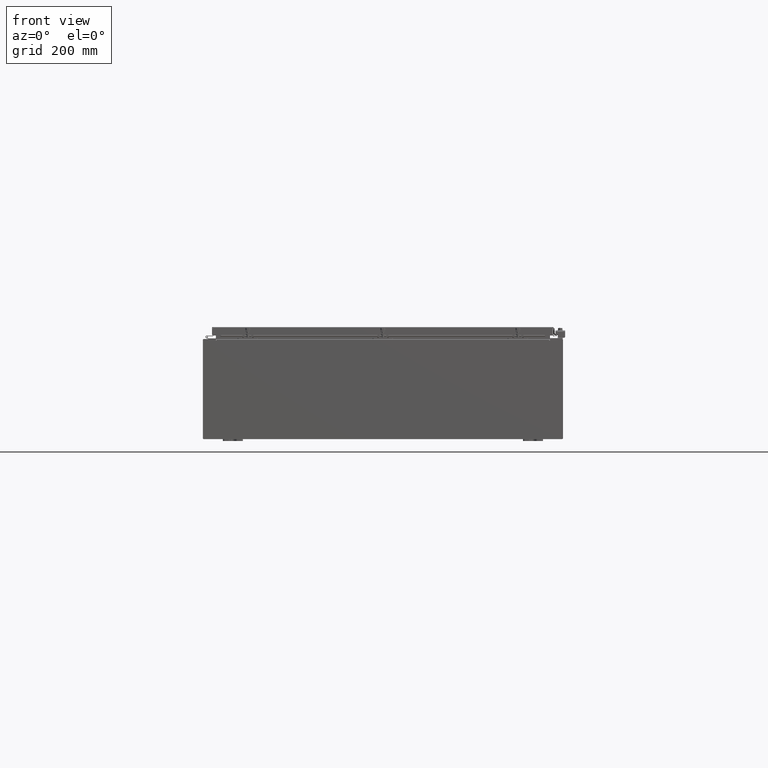
[diagram: clean part render]
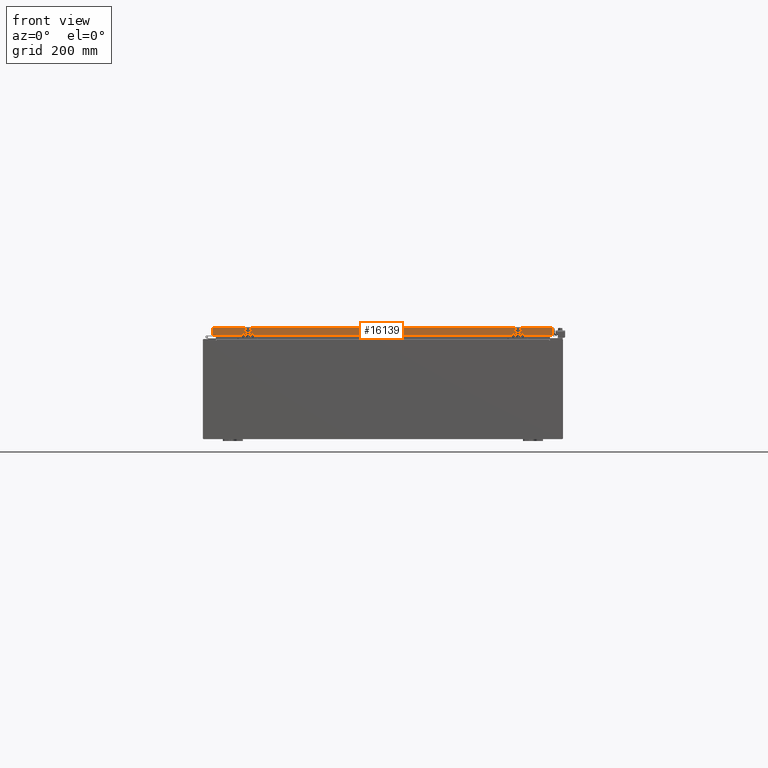
[diagram: same view with one face highlighted and labeled with its STEP entity id]
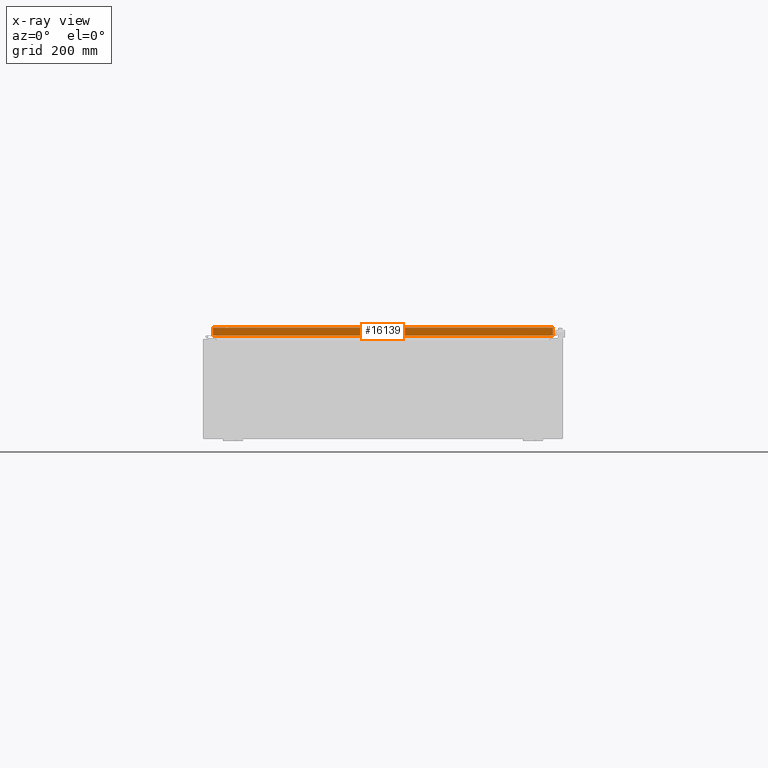
[diagram: x-ray of the same camera — body ghosted, the highlighted face saturated]
A machine part, front view. The second image highlights one B-rep face of the part: STEP entity #16139.
The next image is the same camera in x-ray: the body ghosted, the highlighted face saturated — about 0% of this face is hidden behind the body in this view.
In plain terms, the highlighted planar face has unit normal (-0, 1, -0).
Its self-contained STEP definition (entity closure, byte-faithful):
#249 = CARTESIAN_POINT ( 'NONE',  ( 16.98915786437627100, -29.09400000000000500, -0.8499999999999996400 ) ) ;
#1231 = VECTOR ( 'NONE', #41360, 39.37007874015748100 ) ;
#2970 = LINE ( 'NONE', #6198, #27816 ) ;
#3167 = VERTEX_POINT ( 'NONE', #3233 ) ;
#3233 = CARTESIAN_POINT ( 'NONE',  ( -16.98915786437626700, -29.09400000000000500, -0.8499999999999954300 ) ) ;
#6198 = CARTESIAN_POINT ( 'NONE',  ( 17.07800000000000300, -29.09400000000000500, -0.8499999999999996400 ) ) ;
#6711 = ORIENTED_EDGE ( 'NONE', *, *, #9176, .T. ) ;
#6802 = CARTESIAN_POINT ( 'NONE',  ( 16.23915786437626400, -29.09400000000000800, -0.8499999999999994200 ) ) ;
#9176 = EDGE_CURVE ( 'NONE', #16498, #3167, #40925, .T. ) ;
#9750 = VECTOR ( 'NONE', #27063, 39.37007874015748100 ) ;
#9817 = VERTEX_POINT ( 'NONE', #6802 ) ;
#11262 = DIRECTION ( 'NONE',  ( -1.000000000000000000, -0.0000000000000000000, 1.239713195391617100E-016 ) ) ;
#12167 = CARTESIAN_POINT ( 'NONE',  ( 17.07800000000000300, -29.09400000000000100, -0.08769999999999547600 ) ) ;
#13318 = ORIENTED_EDGE ( 'NONE', *, *, #60888, .F. ) ;
#13422 = CARTESIAN_POINT ( 'NONE',  ( 16.23915786437626400, -29.09400000000000800, -0.8499999999999994200 ) ) ;
#16139 = ADVANCED_FACE ( 'NONE', ( #24935 ), #30007, .F. ) ;
#16498 = VERTEX_POINT ( 'NONE', #21470 ) ;
#17051 = DIRECTION ( 'NONE',  ( 0.0000000000000000000, 5.637761885544721100E-015, 1.000000000000000000 ) ) ;
#18585 = VECTOR ( 'NONE', #62761, 39.37007874015748100 ) ;
#19126 = VECTOR ( 'NONE', #63189, 39.37007874015748100 ) ;
#19857 = VECTOR ( 'NONE', #58846, 39.37007874015748100 ) ;
#21470 = CARTESIAN_POINT ( 'NONE',  ( -16.98915786437626700, -29.09400000000000100, -0.08769999999999547600 ) ) ;
#21621 = ORIENTED_EDGE ( 'NONE', *, *, #58942, .F. ) ;
#23246 = ORIENTED_EDGE ( 'NONE', *, *, #58686, .F. ) ;
#24710 = VERTEX_POINT ( 'NONE', #249 ) ;
#24935 = FACE_OUTER_BOUND ( 'NONE', #36629, .T. ) ;
#27063 = DIRECTION ( 'NONE',  ( 1.000000000000000000, 6.989207801985715800E-031, -3.922586267643549700E-045 ) ) ;
#27816 = VECTOR ( 'NONE', #11262, 39.37007874015748100 ) ;
#30007 = PLANE ( 'NONE',  #54383 ) ;
#32313 = LINE ( 'NONE', #13422, #19126 ) ;
#36629 = EDGE_LOOP ( 'NONE', ( #56157, #6711, #13318, #43358, #21621, #23246 ) ) ;
#38812 = CARTESIAN_POINT ( 'NONE',  ( 17.07800000000000300, -29.09400000000000500, -0.8499999999999996400 ) ) ;
#40925 = LINE ( 'NONE', #46106, #1231 ) ;
#41360 = DIRECTION ( 'NONE',  ( 0.0000000000000000000, -5.637761885544721800E-015, -1.000000000000000000 ) ) ;
#41743 = CARTESIAN_POINT ( 'NONE',  ( 2.033440117909723900E-029, -29.09400000000000100, 1.642858579540496700E-013 ) ) ;
#43358 = ORIENTED_EDGE ( 'NONE', *, *, #51119, .F. ) ;
#43402 = LINE ( 'NONE', #57766, #18585 ) ;
#44189 = DIRECTION ( 'NONE',  ( -6.989207801985715000E-031, 1.000000000000000000, -5.637761885544721100E-015 ) ) ;
#46106 = CARTESIAN_POINT ( 'NONE',  ( -16.98915786437626700, -29.09400000000000100, 1.642858579540496700E-013 ) ) ;
#46281 = LINE ( 'NONE', #38812, #19857 ) ;
#50900 = LINE ( 'NONE', #12167, #9750 ) ;
#51119 = EDGE_CURVE ( 'NONE', #9817, #63361, #32313, .T. ) ;
#53979 = CARTESIAN_POINT ( 'NONE',  ( 16.98915786437627100, -29.09400000000000100, -0.08769999999999549000 ) ) ;
#54383 = AXIS2_PLACEMENT_3D ( 'NONE', #41743, #44189, #17051 ) ;
#54466 = EDGE_CURVE ( 'NONE', #16498, #55343, #50900, .T. ) ;
#55343 = VERTEX_POINT ( 'NONE', #53979 ) ;
#56157 = ORIENTED_EDGE ( 'NONE', *, *, #54466, .F. ) ;
#57766 = CARTESIAN_POINT ( 'NONE',  ( 16.98915786437627100, -29.09400000000000100, -0.07469999999999958600 ) ) ;
#58686 = EDGE_CURVE ( 'NONE', #55343, #24710, #43402, .T. ) ;
#58846 = DIRECTION ( 'NONE',  ( -1.000000000000000000, -0.0000000000000000000, 1.239713195391617100E-016 ) ) ;
#58942 = EDGE_CURVE ( 'NONE', #24710, #9817, #2970, .T. ) ;
#60273 = CARTESIAN_POINT ( 'NONE',  ( -16.23915786437626000, -29.09400000000000800, -0.8499999999999994200 ) ) ;
#60888 = EDGE_CURVE ( 'NONE', #63361, #3167, #46281, .T. ) ;
#62761 = DIRECTION ( 'NONE',  ( -0.0000000000000000000, -5.637761885544721800E-015, -1.000000000000000000 ) ) ;
#63189 = DIRECTION ( 'NONE',  ( -1.000000000000000000, 0.0000000000000000000, 0.0000000000000000000 ) ) ;
#63361 = VERTEX_POINT ( 'NONE', #60273 ) ;